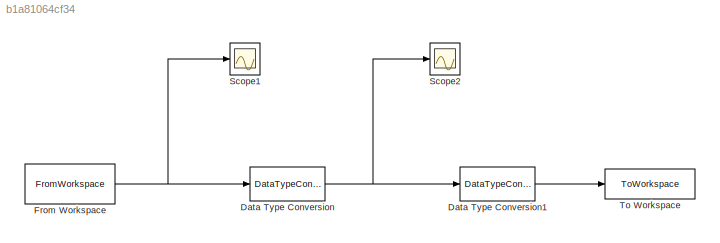
MODEL slx_b1a81064cf34
KIND model
CONFIG AbsTol = auto
CONFIG EnableMultiTasking = off
CONFIG FixedStep = auto
CONFIG InitFcn = W_bits = 32;\nF_bits = 16;\n\np = 1;\nq = 1;\n\nfilename ='<userpath>\Desktop\SoC-FPGAs-II\Lab 3\green_day.wav';\n\n[y,Fs] = audioread(filename);\n\ninput_signal = resample(y,p,q);\n\nt = zeros(length(input_signal),1);\n\nfor i = 1:length(input_signal)\n t(i) = 1/Fs * i*q;\nend\n\ninput_signal = [t input_signal];
CONFIG MaxStep = auto
CONFIG MinStep = auto
CONFIG RelTol = 1e-3
CONFIG SampleTimeConstraint = Unconstrained
CONFIG Solver = VariableStepAuto
CONFIG SolverName = VariableStepAuto
CONFIG StartTime = 0.0
CONFIG StopTime = 1
BLOCK [DataTypeConversion] Data Type Conversion
  OutDataTypeStr = fixdt(1,W_bits,F_bits)
  RndMeth = Floor
  SaturateOnIntegerOverflow = off
BLOCK [DataTypeConversion] Data Type Conversion1
  OutDataTypeStr = double
  RndMeth = Floor
  SaturateOnIntegerOverflow = off
BLOCK [FromWorkspace] From Workspace
  OutDataTypeStr = double
  SampleTime = 1/Fs*q*4
  VariableName = input_signal
  ZeroCross = on
BLOCK [Scope] Scope1
  Floating = off
  NumInputPorts = 1
  Ports = [1]
  ScopeSpecificationString = Simulink.scopes.TimeScopeBlockCfg('CurrentConfiguration', extmgr.ConfigurationSet(extmgr.Configuration('Core','General UI',true),extmgr.Configuration('Core','Source UI',true),extmgr.Configuration('Sources','WiredSimulink',true,'DataLoggingVariableName','ScopeData1'),extmgr.Configuration('Visuals','Time Domain',true,'SerializedDisplays',{struct('MinYLimReal','-0.28318','MaxYLimReal','0.28727','YLab...<+1428ch>
BLOCK [Scope] Scope2
  Floating = off
  NumInputPorts = 1
  Ports = [1]
  ScopeSpecificationString = Simulink.scopes.TimeScopeBlockCfg('CurrentConfiguration', extmgr.ConfigurationSet(extmgr.Configuration('Core','General UI',true),extmgr.Configuration('Core','Source UI',true),extmgr.Configuration('Sources','WiredSimulink',true,'DataLoggingVariableName','ScopeData1'),extmgr.Configuration('Visuals','Time Domain',true,'SerializedDisplays',{struct('MinYLimReal','-0.28318','MaxYLimReal','0.28727','YLab...<+1434ch>
BLOCK [ToWorkspace] To Workspace
  FixptAsFi = on
  MaxDataPoints = inf
  Ports = [1]
  SampleTime = -1
  SaveFormat = Timeseries
  VariableName = output_signal
LINE Data Type Conversion1:1 -> To Workspace:1
NET Data Type Conversion:1 -> Data Type Conversion1:1, Scope2:1
NET From Workspace:1 -> Data Type Conversion:1, Scope1:1
note: NET lines group one-source signal fan-out (src -> all destinations, sorted); 1:1 wires keep LINE
